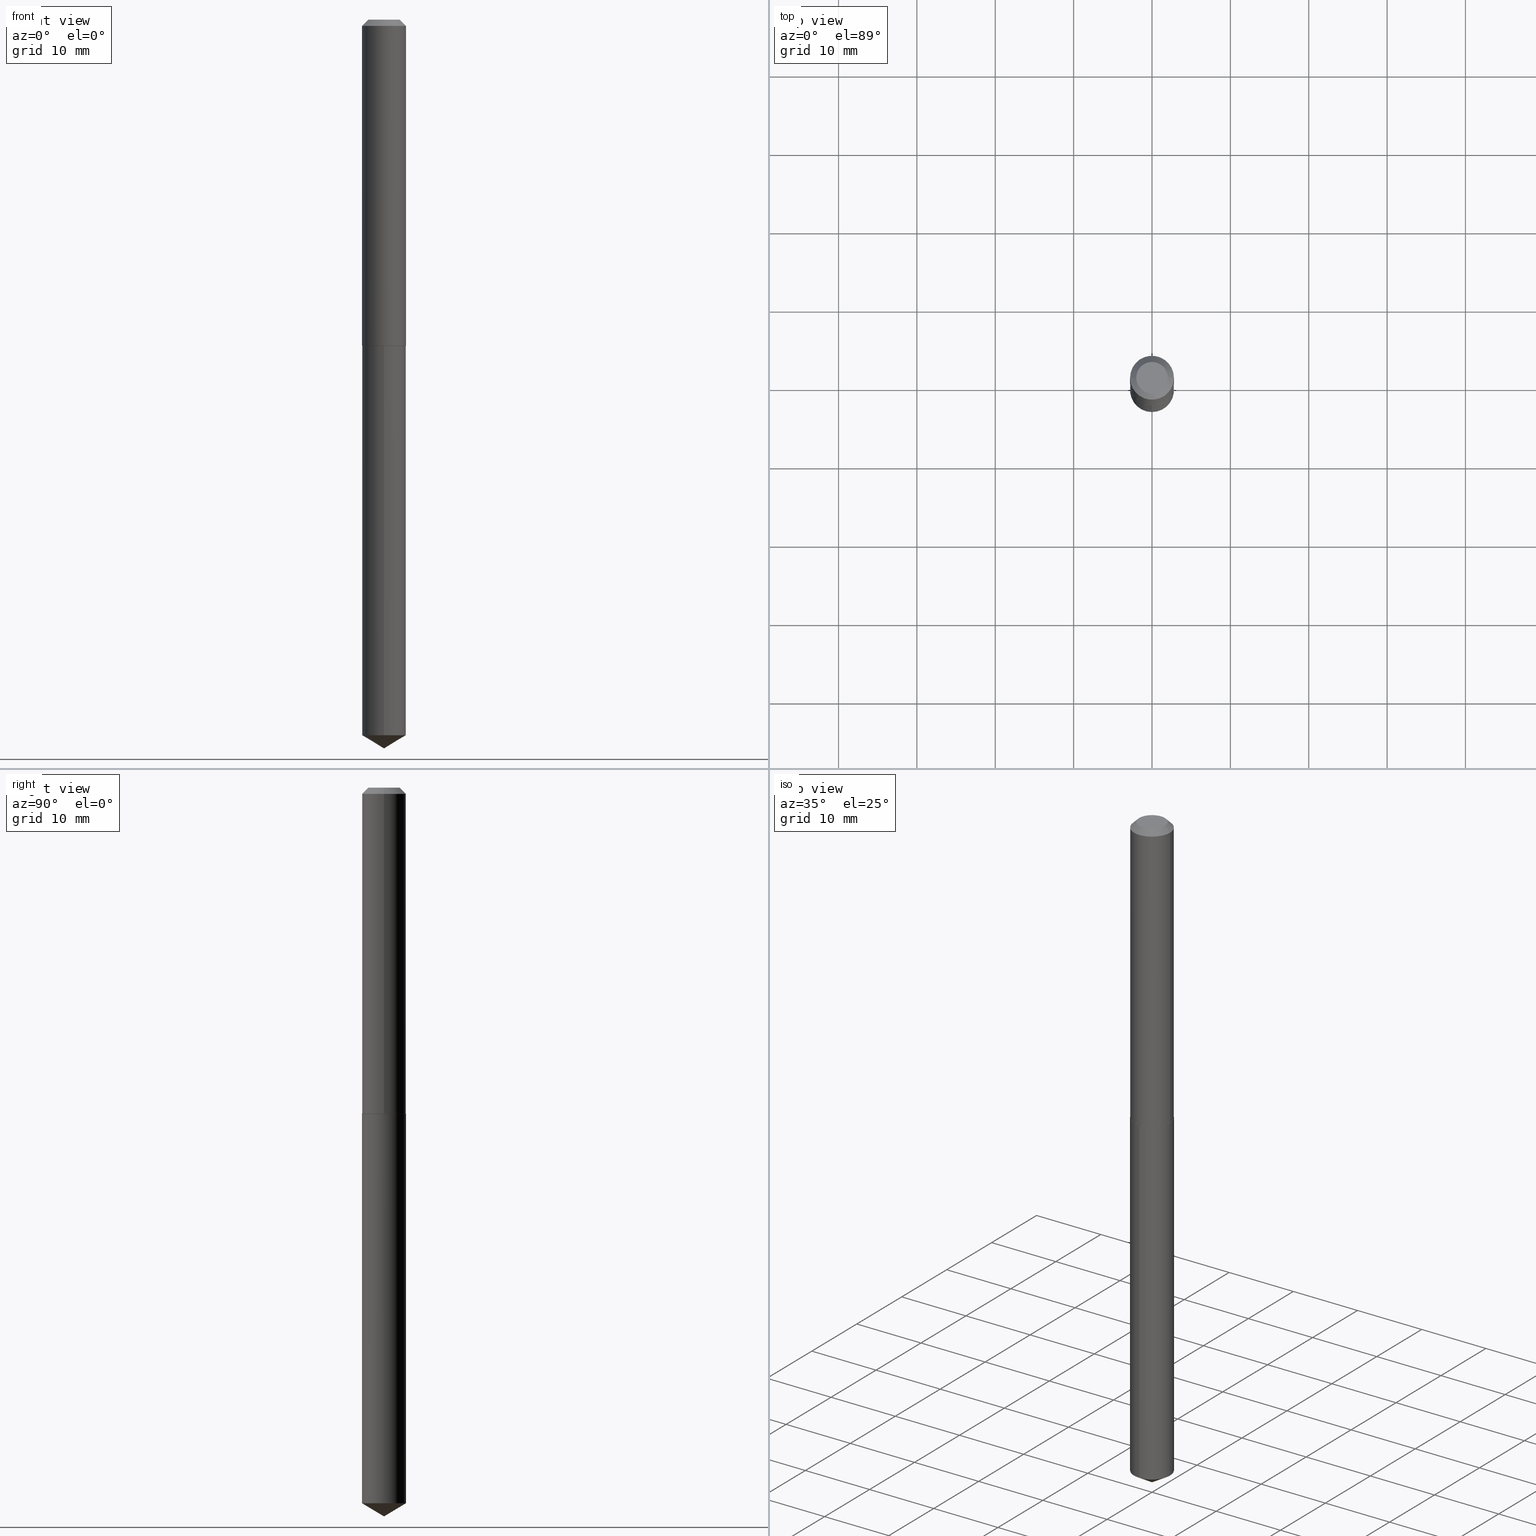
[diagram: canonical four-view strip — front | top / right | iso, engineering-drawing reading convention]
A machine part, canonical four-view strip (front | top / right | iso — engineering-drawing reading convention). The complete STEP part file that produces these views, byte-faithful:
ISO-10303-21;
HEADER;
FILE_DESCRIPTION (( 'STEP AP203' ),
    '1' );
FILE_NAME ('61088.STEP',
    '2024-04-23T03:36:24',
    ( '' ),
    ( '' ),
    'SwSTEP 2.0',
    'SolidWorks 2023',
    '' );
FILE_SCHEMA (( 'CONFIG_CONTROL_DESIGN' ));
ENDSEC;

DATA;
#1 = PLANE ( 'NONE',  #146 ) ;
#2 = VERTEX_POINT ( 'NONE', #211 ) ;
#3 = AXIS2_PLACEMENT_3D ( 'NONE', #194, #163, #35 ) ;
#4 = CARTESIAN_POINT ( 'NONE',  ( -0.1102500000000000008, -2.129482227787853014E-15, -0.03125000000000021511 ) ) ;
#5 = DIRECTION ( 'NONE',  ( 1.000000000000000000, -6.982962677686266711E-15, 0.000000000000000000 ) ) ;
#6 = PERSON_AND_ORGANIZATION_ROLE ( 'creator' ) ;
#7 = CARTESIAN_POINT ( 'NONE',  ( 4.003966076366924393E-29, -5.716602396087881989E-15, -1.637299999999999978 ) ) ;
#8 = PERSON_AND_ORGANIZATION ( #116, #334 ) ;
#9 = ORIENTED_EDGE ( 'NONE', *, *, #315, .F. ) ;
#10 = DIMENSIONAL_EXPONENTS ( 1.000000000000000000, 0.000000000000000000, 0.000000000000000000, 0.000000000000000000, 0.000000000000000000, 0.000000000000000000, 0.000000000000000000 ) ;
#11 = AXIS2_PLACEMENT_3D ( 'NONE', #174, #295, #140 ) ;
#12 = DIRECTION ( 'NONE',  ( -2.445447831690350451E-29, 3.491511375513473467E-15, 1.000000000000000000 ) ) ;
#13 = VERTEX_POINT ( 'NONE', #370 ) ;
#14 = DIRECTION ( 'NONE',  ( -1.000000000000000000, 6.982962677686266711E-15, 0.000000000000000000 ) ) ;
#15 = COORDINATED_UNIVERSAL_TIME_OFFSET ( 5, 0, .BEHIND. ) ;
#16 = CC_DESIGN_DATE_AND_TIME_ASSIGNMENT ( #157, #190, ( #18 ) ) ;
#17 = EDGE_CURVE ( 'NONE', #2, #69, #264, .T. ) ;
#18 = SECURITY_CLASSIFICATION ( '', '', #360 ) ;
#19 = EDGE_CURVE ( 'NONE', #69, #278, #375, .T. ) ;
#20 = AXIS2_PLACEMENT_3D ( 'NONE', #260, #166, #64 ) ;
#21 = APPROVAL_DATE_TIME ( #336, #25 ) ;
#22 = LINE ( 'NONE', #189, #73 ) ;
#23 = ORIENTED_EDGE ( 'NONE', *, *, #219, .T. ) ;
#24 = DIRECTION ( 'NONE',  ( -2.445468806185136597E-29, 3.491481338843145583E-15, 1.000000000000000000 ) ) ;
#25 = APPROVAL ( #296, 'UNSPECIFIED' ) ;
#26 = EDGE_CURVE ( 'NONE', #13, #309, #104, .T. ) ;
#27 = DIRECTION ( 'NONE',  ( -2.445468806185136597E-29, 3.491481338843145583E-15, 1.000000000000000000 ) ) ;
#28 = COORDINATED_UNIVERSAL_TIME_OFFSET ( 5, 0, .BEHIND. ) ;
#29 = FACE_OUTER_BOUND ( 'NONE', #257, .T. ) ;
#30 = ORIENTED_EDGE ( 'NONE', *, *, #19, .T. ) ;
#31 = PLANE ( 'NONE',  #267 ) ;
#32 = AXIS2_PLACEMENT_3D ( 'NONE', #105, #193, #273 ) ;
#33 = CIRCLE ( 'NONE', #11, 0.07900000000000000078 ) ;
#34 = ADVANCED_FACE ( 'NONE', ( #135 ), #237, .T. ) ;
#35 = DIRECTION ( 'NONE',  ( 1.000000000000000000, -6.982962677686265133E-15, 0.000000000000000000 ) ) ;
#36 = PERSON_AND_ORGANIZATION_ROLE ( 'design_owner' ) ;
#37 = EDGE_LOOP ( 'NONE', ( #266, #226, #320, #390 ) ) ;
#38 = DIRECTION ( 'NONE',  ( -6.982962677686266711E-15, -1.000000000000000000, 3.468864327941606836E-15 ) ) ;
#39 = EDGE_CURVE ( 'NONE', #278, #58, #106, .T. ) ;
#40 = ORIENTED_EDGE ( 'NONE', *, *, #270, .T. ) ;
#41 = DIRECTION ( 'NONE',  ( 1.000000000000000000, -6.982962677686266711E-15, 0.000000000000000000 ) ) ;
#42 = ADVANCED_BREP_SHAPE_REPRESENTATION ( '61088', ( #122, #385, #363 ), #111 ) ;
#43 = DIRECTION ( 'NONE',  ( 1.000000000000000000, -6.982962677686265133E-15, 0.000000000000000000 ) ) ;
#44 = DATE_AND_TIME ( #130, #141 ) ;
#45 = ORIENTED_EDGE ( 'NONE', *, *, #234, .T. ) ;
#46 = AXIS2_PLACEMENT_3D ( 'NONE', #279, #364, #180 ) ;
#47 = PERSON_AND_ORGANIZATION ( #116, #334 ) ;
#48 = CLOSED_SHELL ( 'NONE', ( #301, #144, #131, #249, #241, #173, #125, #327 ) ) ;
#49 = CONICAL_SURFACE ( 'NONE', #210, 0.1102500000000002089, 0.7853981633972434429 ) ;
#50 = VECTOR ( 'NONE', #252, 39.37007874015748143 ) ;
#51 = EDGE_LOOP ( 'NONE', ( #40, #158, #86, #239 ) ) ;
#52 = CARTESIAN_POINT ( 'NONE',  ( 4.005188810770016634E-29, -5.718348136757303493E-15, -1.637799999999999923 ) ) ;
#53 = ORIENTED_EDGE ( 'NONE', *, *, #317, .F. ) ;
#54 = FACE_OUTER_BOUND ( 'NONE', #37, .T. ) ;
#55 = DIRECTION ( 'NONE',  ( -0.7071067811864026886, 7.493145998869830357E-15, 0.7071067811866923458 ) ) ;
#56 = ORIENTED_EDGE ( 'NONE', *, *, #89, .T. ) ;
#57 = LOCAL_TIME ( 23, 36, 24.00000000000000000, #307 ) ;
#58 = VERTEX_POINT ( 'NONE', #4 ) ;
#59 = COORDINATED_UNIVERSAL_TIME_OFFSET ( 5, 0, .BEHIND. ) ;
#60 = CYLINDRICAL_SURFACE ( 'NONE', #195, 0.1102500000000001118 ) ;
#61 = CARTESIAN_POINT ( 'NONE',  ( 7.833733661755984184E-16, 0.1102499999999942693, -1.637800000000000145 ) ) ;
#62 = EDGE_CURVE ( 'NONE', #58, #278, #333, .T. ) ;
#63 = CARTESIAN_POINT ( 'NONE',  ( 7.833733661755981226E-16, 0.1102499999999874275, -3.595155116752211555 ) ) ;
#64 = DIRECTION ( 'NONE',  ( -6.982962677686266711E-15, -1.000000000000000000, 3.468864327941606836E-15 ) ) ;
#65 = CIRCLE ( 'NONE', #94, 0.1102500000000000008 ) ;
#66 = CC_DESIGN_SECURITY_CLASSIFICATION ( #18, ( #254 ) ) ;
#67 = DATE_AND_TIME ( #138, #350 ) ;
#68 = CARTESIAN_POINT ( 'NONE',  ( -0.1097500000000002363, -4.935878257086481448E-15, -1.637800000000000145 ) ) ;
#69 = VERTEX_POINT ( 'NONE', #371 ) ;
#70 = DIRECTION ( 'NONE',  ( 0.000000000000000000, 0.000000000000000000, 1.000000000000000000 ) ) ;
#71 = ORIENTED_EDGE ( 'NONE', *, *, #159, .T. ) ;
#72 = ADVANCED_FACE ( 'NONE', ( #343 ), #298, .T. ) ;
#73 = VECTOR ( 'NONE', #55, 39.37007874015748143 ) ;
#74 = CARTESIAN_POINT ( 'NONE',  ( 7.642090019328604414E-31, -1.091087918388490513E-16, -0.03125000000000021511 ) ) ;
#75 = CONICAL_SURFACE ( 'NONE', #20, 65.52281426576819001, 1.029744258676652979 ) ;
#76 = DIRECTION ( 'NONE',  ( -2.445447831690350451E-29, 3.491511375513473467E-15, 1.000000000000000000 ) ) ;
#77 = DIRECTION ( 'NONE',  ( -6.982962677686266711E-15, -1.000000000000000000, 4.955733321839933614E-15 ) ) ;
#78 = APPROVAL_DATE_TIME ( #121, #383 ) ;
#79 = CC_DESIGN_PERSON_AND_ORGANIZATION_ASSIGNMENT ( #319, #36, ( #302 ) ) ;
#80 = ADVANCED_FACE ( 'NONE', ( #139 ), #75, .T. ) ;
#81 = PERSON_AND_ORGANIZATION_ROLE ( 'creator' ) ;
#82 = EDGE_LOOP ( 'NONE', ( #53, #123, #348, #142 ) ) ;
#83 = CARTESIAN_POINT ( 'NONE',  ( 0.000000000000000000, 0.000000000000000000, 0.000000000000000000 ) ) ;
#84 = EDGE_LOOP ( 'NONE', ( #357, #99, #304 ) ) ;
#85 = CARTESIAN_POINT ( 'NONE',  ( 0.000000000000000000, 0.000000000000000000, 0.000000000000000000 ) ) ;
#86 = ORIENTED_EDGE ( 'NONE', *, *, #192, .F. ) ;
#87 = AXIS2_PLACEMENT_3D ( 'NONE', #314, #291, #136 ) ;
#88 = DIRECTION ( 'NONE',  ( 2.445447831690350451E-29, -3.491511375513473073E-15, -1.000000000000000000 ) ) ;
#89 = EDGE_CURVE ( 'NONE', #316, #278, #171, .T. ) ;
#90 = ORIENTED_EDGE ( 'NONE', *, *, #228, .T. ) ;
#91 = DIRECTION ( 'NONE',  ( -2.445447831690350451E-29, 3.491511375513473073E-15, 1.000000000000000000 ) ) ;
#92 = DIRECTION ( 'NONE',  ( -2.445468806185136597E-29, 3.491481338843145583E-15, 1.000000000000000000 ) ) ;
#93 = PRODUCT_DEFINITION_SHAPE ( 'NONE', 'NONE',  #176 ) ;
#94 = AXIS2_PLACEMENT_3D ( 'NONE', #388, #285, #250 ) ;
#95 =( CONVERSION_BASED_UNIT ( 'INCH', #294 ) LENGTH_UNIT ( ) NAMED_UNIT ( #10 ) );
#96 = CC_DESIGN_PERSON_AND_ORGANIZATION_ASSIGNMENT ( #8, #6, ( #176 ) ) ;
#97 = DIRECTION ( 'NONE',  ( -6.982962677686266711E-15, -1.000000000000000000, 4.955733321839933614E-15 ) ) ;
#98 = CC_DESIGN_PERSON_AND_ORGANIZATION_ASSIGNMENT ( #244, #362, ( #18 ) ) ;
#99 = ORIENTED_EDGE ( 'NONE', *, *, #255, .T. ) ;
#100 = CARTESIAN_POINT ( 'NONE',  ( 0.1102500000000000008, -8.654786960931604025E-16, -0.03125000000000021511 ) ) ;
#101 = APPLICATION_CONTEXT ( 'configuration controlled 3d designs of mechanical parts and assemblies' ) ;
#102 = LINE ( 'NONE', #376, #289 ) ;
#103 = CARTESIAN_POINT ( 'NONE',  ( 4.005188810770016634E-29, -5.718348136757303493E-15, -1.637799999999999923 ) ) ;
#104 = LINE ( 'NONE', #268, #221 ) ;
#105 = CARTESIAN_POINT ( 'NONE',  ( 4.003966076366924393E-29, -5.716602396087881989E-15, -1.637299999999999978 ) ) ;
#106 = CIRCLE ( 'NONE', #299, 0.1102500000000000008 ) ;
#107 = CARTESIAN_POINT ( 'NONE',  ( 4.005188810770016634E-29, -5.718348136757303493E-15, -1.637799999999999923 ) ) ;
#108 = VECTOR ( 'NONE', #361, 39.37007874015748143 ) ;
#109 = FACE_OUTER_BOUND ( 'NONE', #213, .T. ) ;
#110 = EDGE_LOOP ( 'NONE', ( #292, #248 ) ) ;
#111 =( GEOMETRIC_REPRESENTATION_CONTEXT ( 3 ) GLOBAL_UNCERTAINTY_ASSIGNED_CONTEXT ( ( #275 ) ) GLOBAL_UNIT_ASSIGNED_CONTEXT ( ( #95, #137, #225 ) ) REPRESENTATION_CONTEXT ( 'NONE', 'WORKASPACE' ) );
#112 = PERSON_AND_ORGANIZATION ( #116, #334 ) ;
#113 = DIRECTION ( 'NONE',  ( -2.445468806185136597E-29, 3.491481338843145583E-15, 1.000000000000000000 ) ) ;
#114 = AXIS2_PLACEMENT_3D ( 'NONE', #368, #284, #5 ) ;
#115 = PRODUCT_RELATED_PRODUCT_CATEGORY ( 'detail', '', ( #302 ) ) ;
#116 = PERSON ( 'UNSPECIFIED', 'UNSPECIFIED', 'UNSPECIFIED', ('UNSPECIFIED'), ('UNSPECIFIED'), ('UNSPECIFIED') ) ;
#117 = CARTESIAN_POINT ( 'NONE',  ( 0.07900000000000000078, -7.037290189585556716E-16, 4.837354856675944889E-19 ) ) ;
#118 = VERTEX_POINT ( 'NONE', #134 ) ;
#119 = ORIENTED_EDGE ( 'NONE', *, *, #352, .F. ) ;
#120 = CALENDAR_DATE ( 2024, 22, 4 ) ;
#121 = DATE_AND_TIME ( #245, #57 ) ;
#122 = MANIFOLD_SOLID_BREP ( 'Body-Move/Copy2[1]', #328 ) ;
#123 = ORIENTED_EDGE ( 'NONE', *, *, #242, .T. ) ;
#124 = CIRCLE ( 'NONE', #114, 0.1097500000000002363 ) ;
#125 = ADVANCED_FACE ( 'NONE', ( #283 ), #321, .T. ) ;
#126 = CARTESIAN_POINT ( 'NONE',  ( 7.642090019328604414E-31, -1.091087918388490513E-16, -0.03125000000000021511 ) ) ;
#127 = PERSON_AND_ORGANIZATION ( #116, #334 ) ;
#128 = DIRECTION ( 'NONE',  ( 2.445468806185136597E-29, -3.491481338843145583E-15, -1.000000000000000000 ) ) ;
#129 = LINE ( 'NONE', #202, #50 ) ;
#130 = CALENDAR_DATE ( 2024, 22, 4 ) ;
#131 = ADVANCED_FACE ( 'NONE', ( #293 ), #145, .T. ) ;
#132 = VECTOR ( 'NONE', #259, 39.37007874015748143 ) ;
#133 = ORIENTED_EDGE ( 'NONE', *, *, #26, .T. ) ;
#134 = CARTESIAN_POINT ( 'NONE',  ( 8.953762690951048429E-29, -1.278381975030503079E-14, -3.661399999999999988 ) ) ;
#135 = FACE_OUTER_BOUND ( 'NONE', #365, .T. ) ;
#136 = DIRECTION ( 'NONE',  ( 1.000000000000000000, -6.982962677686265922E-15, 4.876176775795935793E-29 ) ) ;
#137 =( NAMED_UNIT ( * ) PLANE_ANGLE_UNIT ( ) SI_UNIT ( $, .RADIAN. ) );
#138 = CALENDAR_DATE ( 2024, 22, 4 ) ;
#139 = FACE_OUTER_BOUND ( 'NONE', #200, .T. ) ;
#140 = DIRECTION ( 'NONE',  ( 1.000000000000000000, -6.982962677686266711E-15, 4.876146932060044341E-29 ) ) ;
#141 = LOCAL_TIME ( 23, 36, 24.00000000000000000, #373 ) ;
#142 = ORIENTED_EDGE ( 'NONE', *, *, #219, .F. ) ;
#143 = APPROVAL ( #286, 'UNSPECIFIED' ) ;
#144 = ADVANCED_FACE ( 'NONE', ( #54 ), #60, .T. ) ;
#145 = CONICAL_SURFACE ( 'NONE', #32, 0.1102500000000002089, 0.7853981633972434429 ) ;
#146 = AXIS2_PLACEMENT_3D ( 'NONE', #389, #217, #218 ) ;
#147 = CC_DESIGN_PERSON_AND_ORGANIZATION_ASSIGNMENT ( #271, #81, ( #254 ) ) ;
#148 = ADVANCED_FACE ( 'NONE', ( #29 ), #31, .F. ) ;
#149 = DIRECTION ( 'NONE',  ( 1.000000000000000000, -6.982962677686266711E-15, 0.000000000000000000 ) ) ;
#150 = APPROVAL_STATUS ( 'not_yet_approved' ) ;
#151 = AXIS2_PLACEMENT_3D ( 'NONE', #83, #24, #154 ) ;
#152 = CC_DESIGN_APPROVAL ( #143, ( #176 ) ) ;
#153 = ORIENTED_EDGE ( 'NONE', *, *, #317, .T. ) ;
#154 = DIRECTION ( 'NONE',  ( 1.000000000000000000, -6.982962677686266711E-15, 4.876176775795935793E-29 ) ) ;
#155 = FACE_OUTER_BOUND ( 'NONE', #236, .T. ) ;
#156 = ORIENTED_EDGE ( 'NONE', *, *, #379, .F. ) ;
#157 = DATE_AND_TIME ( #366, #207 ) ;
#158 = ORIENTED_EDGE ( 'NONE', *, *, #197, .T. ) ;
#159 = EDGE_CURVE ( 'NONE', #191, #316, #246, .T. ) ;
#160 = DIRECTION ( 'NONE',  ( -2.445468806185136597E-29, 3.491481338843145583E-15, 1.000000000000000000 ) ) ;
#161 = VECTOR ( 'NONE', #172, 39.37007874015748854 ) ;
#162 = DIRECTION ( 'NONE',  ( -2.445447831690350451E-29, 3.491511375513473467E-15, 1.000000000000000000 ) ) ;
#163 = DIRECTION ( 'NONE',  ( -2.445468806185136597E-29, 3.491481338843145583E-15, 1.000000000000000000 ) ) ;
#164 = APPLICATION_PROTOCOL_DEFINITION ( 'international standard', 'config_control_design', 1994, #222 ) ;
#165 = EDGE_LOOP ( 'NONE', ( #287, #170, #45, #243 ) ) ;
#166 = DIRECTION ( 'NONE',  ( -2.445447831690350451E-29, 3.491511375513473467E-15, 1.000000000000000000 ) ) ;
#167 = APPROVAL_PERSON_ORGANIZATION ( #127, #143, #256 ) ;
#168 = DIRECTION ( 'NONE',  ( 1.000000000000000000, -6.982962677686266711E-15, 0.000000000000000000 ) ) ;
#169 = CYLINDRICAL_SURFACE ( 'NONE', #342, 0.1102500000000000008 ) ;
#170 = ORIENTED_EDGE ( 'NONE', *, *, #159, .F. ) ;
#171 = LINE ( 'NONE', #100, #132 ) ;
#172 = DIRECTION ( 'NONE',  ( -5.985567269335936546E-15, -0.8571673007021096691, 0.5150380749100583744 ) ) ;
#173 = ADVANCED_FACE ( 'NONE', ( #182 ), #358, .T. ) ;
#174 = CARTESIAN_POINT ( 'NONE',  ( -1.182960040634186398E-47, 1.688953421129307900E-33, 4.837354856632054872E-19 ) ) ;
#175 = DATE_TIME_ROLE ( 'creation_date' ) ;
#176 = PRODUCT_DEFINITION ( 'UNKNOWN', '', #254, #184 ) ;
#177 = CC_DESIGN_APPROVAL ( #25, ( #254 ) ) ;
#178 = CARTESIAN_POINT ( 'NONE',  ( -0.1102500000000002089, -4.933229029912370247E-15, -1.637299999999999978 ) ) ;
#179 = DIRECTION ( 'NONE',  ( -2.445468806185136877E-29, 3.491481338843145188E-15, 1.000000000000000000 ) ) ;
#180 = DIRECTION ( 'NONE',  ( -6.982962677686266711E-15, -1.000000000000000000, 2.477866660919966807E-15 ) ) ;
#181 = EDGE_LOOP ( 'NONE', ( #90, #153, #382, #274 ) ) ;
#182 = FACE_OUTER_BOUND ( 'NONE', #308, .T. ) ;
#183 = ORIENTED_EDGE ( 'NONE', *, *, #297, .T. ) ;
#184 = DESIGN_CONTEXT ( 'detailed design', #222, 'design' ) ;
#185 = APPROVAL_ROLE ( '' ) ;
#186 = CIRCLE ( 'NONE', #230, 0.1102500000000000008 ) ;
#187 = ORIENTED_EDGE ( 'NONE', *, *, #192, .T. ) ;
#188 = DIRECTION ( 'NONE',  ( -2.445468806185136597E-29, 3.491481338843145583E-15, 1.000000000000000000 ) ) ;
#189 = CARTESIAN_POINT ( 'NONE',  ( -0.1102500000000002089, -4.933229029912370247E-15, -1.637299999999999978 ) ) ;
#190 = DATE_TIME_ROLE ( 'classification_date' ) ;
#191 = VERTEX_POINT ( 'NONE', #276 ) ;
#192 = EDGE_CURVE ( 'NONE', #309, #330, #65, .T. ) ;
#193 = DIRECTION ( 'NONE',  ( -2.445468806185136597E-29, 3.491481338843145583E-15, 1.000000000000000000 ) ) ;
#194 = CARTESIAN_POINT ( 'NONE',  ( 4.003966076366924393E-29, -5.716602396087881989E-15, -1.637299999999999978 ) ) ;
#195 = AXIS2_PLACEMENT_3D ( 'NONE', #85, #188, #310 ) ;
#196 = AXIS2_PLACEMENT_3D ( 'NONE', #340, #224, #168 ) ;
#197 = EDGE_CURVE ( 'NONE', #204, #330, #258, .T. ) ;
#198 = FACE_OUTER_BOUND ( 'NONE', #51, .T. ) ;
#199 = PLANE ( 'NONE',  #87 ) ;
#200 = EDGE_LOOP ( 'NONE', ( #337, #183, #119 ) ) ;
#201 = CARTESIAN_POINT ( 'NONE',  ( -8.732367664561787781E-28, 1.246773072198746349E-13, 35.70867874015748100 ) ) ;
#202 = CARTESIAN_POINT ( 'NONE',  ( -0.1102500000000000008, 6.607628433760618791E-16, -0.03125000000000021511 ) ) ;
#203 = MECHANICAL_CONTEXT ( 'NONE', #101, 'mechanical' ) ;
#204 = VERTEX_POINT ( 'NONE', #63 ) ;
#205 = AXIS2_PLACEMENT_3D ( 'NONE', #126, #367, #41 ) ;
#206 = DIRECTION ( 'NONE',  ( 0.7071067811864026886, -2.468850131080739687E-15, 0.7071067811866923458 ) ) ;
#207 = LOCAL_TIME ( 23, 36, 24.00000000000000000, #59 ) ;
#208 = SHAPE_DEFINITION_REPRESENTATION ( #93, #42 ) ;
#209 = CARTESIAN_POINT ( 'NONE',  ( 0.1102500000000000008, -8.789804270537599818E-16, -0.03125000000000021511 ) ) ;
#210 = AXIS2_PLACEMENT_3D ( 'NONE', #7, #92, #220 ) ;
#211 = CARTESIAN_POINT ( 'NONE',  ( 0.1097500000000002363, -6.484728290633373536E-15, -1.637800000000000145 ) ) ;
#212 = ORIENTED_EDGE ( 'NONE', *, *, #197, .F. ) ;
#213 = EDGE_LOOP ( 'NONE', ( #280, #56, #345, #335 ) ) ;
#214 = CARTESIAN_POINT ( 'NONE',  ( 0.1102500000000002089, -6.486474031302794251E-15, -1.637299999999999978 ) ) ;
#215 = CC_DESIGN_APPROVAL ( #383, ( #18 ) ) ;
#216 = ORIENTED_EDGE ( 'NONE', *, *, #62, .F. ) ;
#217 = DIRECTION ( 'NONE',  ( 2.438088387897960049E-29, -3.491481338843145188E-15, -1.000000000000000000 ) ) ;
#218 = DIRECTION ( 'NONE',  ( -1.000000000000000000, 6.982962677686265922E-15, -4.876176775795935793E-29 ) ) ;
#219 = EDGE_CURVE ( 'NONE', #331, #69, #223, .T. ) ;
#220 = DIRECTION ( 'NONE',  ( 1.000000000000000000, -6.982962677686265133E-15, 0.000000000000000000 ) ) ;
#221 = VECTOR ( 'NONE', #91, 39.37007874015748143 ) ;
#222 = APPLICATION_CONTEXT ( 'configuration controlled 3d designs of mechanical parts and assemblies' ) ;
#223 = CIRCLE ( 'NONE', #3, 0.1102500000000002089 ) ;
#224 = DIRECTION ( 'NONE',  ( -2.445468806185136597E-29, 3.491481338843145583E-15, 1.000000000000000000 ) ) ;
#225 =( NAMED_UNIT ( * ) SI_UNIT ( $, .STERADIAN. ) SOLID_ANGLE_UNIT ( ) );
#226 = ORIENTED_EDGE ( 'NONE', *, *, #315, .T. ) ;
#227 =( LENGTH_UNIT ( ) NAMED_UNIT ( * ) SI_UNIT ( $, .METRE. ) );
#228 = EDGE_CURVE ( 'NONE', #2, #387, #124, .T. ) ;
#229 = CARTESIAN_POINT ( 'NONE',  ( -7.698716352148708465E-16, -0.1102500000000057184, -1.637799999999999701 ) ) ;
#230 = AXIS2_PLACEMENT_3D ( 'NONE', #349, #76, #77 ) ;
#231 = CIRCLE ( 'NONE', #196, 0.1097500000000002363 ) ;
#232 = CARTESIAN_POINT ( 'NONE',  ( 0.1102500000000001118, -7.698716352149116700E-16, 5.375984895315024509E-30 ) ) ;
#233 = DIRECTION ( 'NONE',  ( 2.445468806185136597E-29, -3.491481338843145583E-15, -1.000000000000000000 ) ) ;
#234 = EDGE_CURVE ( 'NONE', #191, #58, #129, .T. ) ;
#235 = APPROVAL_PERSON_ORGANIZATION ( #303, #383, #185 ) ;
#236 = EDGE_LOOP ( 'NONE', ( #71, #332 ) ) ;
#237 = CYLINDRICAL_SURFACE ( 'NONE', #46, 0.1102500000000000008 ) ;
#238 = DIRECTION ( 'NONE',  ( 1.000000000000000000, -6.982962677686266711E-15, 4.876146932060044341E-29 ) ) ;
#239 = ORIENTED_EDGE ( 'NONE', *, *, #26, .F. ) ;
#240 = APPROVAL_ROLE ( '' ) ;
#241 = ADVANCED_FACE ( 'NONE', ( #372 ), #49, .T. ) ;
#242 = EDGE_CURVE ( 'NONE', #387, #2, #231, .T. ) ;
#243 = ORIENTED_EDGE ( 'NONE', *, *, #62, .T. ) ;
#244 = PERSON_AND_ORGANIZATION ( #116, #334 ) ;
#245 = CALENDAR_DATE ( 2024, 22, 4 ) ;
#246 = CIRCLE ( 'NONE', #272, 0.07900000000000000078 ) ;
#247 = CIRCLE ( 'NONE', #347, 0.1102500000000000008 ) ;
#248 = ORIENTED_EDGE ( 'NONE', *, *, #242, .F. ) ;
#249 = ADVANCED_FACE ( 'NONE', ( #318 ), #199, .F. ) ;
#250 = DIRECTION ( 'NONE',  ( -6.982962677686266711E-15, -1.000000000000000000, 2.477866660919966807E-15 ) ) ;
#251 = DIRECTION ( 'NONE',  ( -1.000000000000000000, 6.982962677686266711E-15, 0.000000000000000000 ) ) ;
#252 = DIRECTION ( 'NONE',  ( -0.7071067811865451302, 2.468850131082231817E-15, -0.7071067811865499042 ) ) ;
#253 = DIRECTION ( 'NONE',  ( -2.445447831690350451E-29, 3.491511375513473467E-15, 1.000000000000000000 ) ) ;
#254 = PRODUCT_DEFINITION_FORMATION_WITH_SPECIFIED_SOURCE ( 'ANY', '', #302, .NOT_KNOWN. ) ;
#255 = EDGE_CURVE ( 'NONE', #118, #204, #102, .T. ) ;
#256 = APPROVAL_ROLE ( '' ) ;
#257 = EDGE_LOOP ( 'NONE', ( #187, #374 ) ) ;
#258 = LINE ( 'NONE', #369, #300 ) ;
#259 = DIRECTION ( 'NONE',  ( 0.7071067811865451302, -7.319954787623248157E-15, -0.7071067811865499042 ) ) ;
#260 = CARTESIAN_POINT ( 'NONE',  ( -8.732367664561787781E-28, 1.246773072198746349E-13, 35.70867874015748100 ) ) ;
#261 = AXIS2_PLACEMENT_3D ( 'NONE', #344, #162, #97 ) ;
#262 = CARTESIAN_POINT ( 'NONE',  ( 4.003966076366924393E-29, -5.716602396087881989E-15, -1.637299999999999978 ) ) ;
#263 = CC_DESIGN_PERSON_AND_ORGANIZATION_ASSIGNMENT ( #112, #386, ( #254 ) ) ;
#264 = LINE ( 'NONE', #214, #281 ) ;
#265 = LINE ( 'NONE', #381, #161 ) ;
#266 = ORIENTED_EDGE ( 'NONE', *, *, #290, .T. ) ;
#267 = AXIS2_PLACEMENT_3D ( 'NONE', #52, #88, #269 ) ;
#268 = CARTESIAN_POINT ( 'NONE',  ( -7.698716352148708465E-16, -0.1102500000000057184, -1.637799999999999701 ) ) ;
#269 = DIRECTION ( 'NONE',  ( 6.982962677686265922E-15, 1.000000000000000000, -3.491511375513473073E-15 ) ) ;
#270 = EDGE_CURVE ( 'NONE', #13, #204, #186, .T. ) ;
#271 = PERSON_AND_ORGANIZATION ( #116, #334 ) ;
#272 = AXIS2_PLACEMENT_3D ( 'NONE', #353, #113, #238 ) ;
#273 = DIRECTION ( 'NONE',  ( 1.000000000000000000, -6.982962677686265133E-15, 0.000000000000000000 ) ) ;
#274 = ORIENTED_EDGE ( 'NONE', *, *, #17, .F. ) ;
#275 = UNCERTAINTY_MEASURE_WITH_UNIT (LENGTH_MEASURE( 1.000000000000000082E-05 ), #95, 'distance_accuracy_value', 'NONE');
#276 = CARTESIAN_POINT ( 'NONE',  ( -0.07900000000000000078, 6.062084474566384135E-16, 4.837354856591569899E-19 ) ) ;
#277 = CARTESIAN_POINT ( 'NONE',  ( 7.642090019328604414E-31, -1.091087918388490513E-16, -0.03125000000000021511 ) ) ;
#278 = VERTEX_POINT ( 'NONE', #209 ) ;
#279 = CARTESIAN_POINT ( 'NONE',  ( 4.005188810770016634E-29, -5.718348136757303493E-15, -1.637799999999999923 ) ) ;
#280 = ORIENTED_EDGE ( 'NONE', *, *, #288, .F. ) ;
#281 = VECTOR ( 'NONE', #206, 39.37007874015748143 ) ;
#282 = AXIS2_PLACEMENT_3D ( 'NONE', #74, #233, #14 ) ;
#283 = FACE_OUTER_BOUND ( 'NONE', #165, .T. ) ;
#284 = DIRECTION ( 'NONE',  ( -2.445468806185136597E-29, 3.491481338843145583E-15, 1.000000000000000000 ) ) ;
#285 = DIRECTION ( 'NONE',  ( -2.445447831690350451E-29, 3.491511375513473467E-15, 1.000000000000000000 ) ) ;
#286 = APPROVAL_STATUS ( 'not_yet_approved' ) ;
#287 = ORIENTED_EDGE ( 'NONE', *, *, #89, .F. ) ;
#288 = EDGE_CURVE ( 'NONE', #316, #191, #33, .T. ) ;
#289 = VECTOR ( 'NONE', #326, 39.37007874015748143 ) ;
#290 = EDGE_CURVE ( 'NONE', #69, #331, #329, .T. ) ;
#291 = DIRECTION ( 'NONE',  ( -2.438088387897960049E-29, 3.491481338843145188E-15, 1.000000000000000000 ) ) ;
#292 = ORIENTED_EDGE ( 'NONE', *, *, #228, .F. ) ;
#293 = FACE_OUTER_BOUND ( 'NONE', #181, .T. ) ;
#294 = LENGTH_MEASURE_WITH_UNIT ( LENGTH_MEASURE( 0.02539999999999999897 ), #227 );
#295 = DIRECTION ( 'NONE',  ( -2.445468806185136597E-29, 3.491481338843145583E-15, 1.000000000000000000 ) ) ;
#296 = APPROVAL_STATUS ( 'not_yet_approved' ) ;
#297 = EDGE_CURVE ( 'NONE', #118, #13, #265, .T. ) ;
#298 = CONICAL_SURFACE ( 'NONE', #325, 65.52281426576819001, 1.029744258676652979 ) ;
#299 = AXIS2_PLACEMENT_3D ( 'NONE', #277, #160, #149 ) ;
#300 = VECTOR ( 'NONE', #338, 39.37007874015748143 ) ;
#301 = ADVANCED_FACE ( 'NONE', ( #109 ), #380, .T. ) ;
#302 = PRODUCT ( '61088', '61088', '', ( #203 ) ) ;
#303 = PERSON_AND_ORGANIZATION ( #116, #334 ) ;
#304 = ORIENTED_EDGE ( 'NONE', *, *, #270, .F. ) ;
#305 = VECTOR ( 'NONE', #179, 39.37007874015748143 ) ;
#306 = AXIS2_PLACEMENT_3D ( 'NONE', #262, #27, #43 ) ;
#307 = COORDINATED_UNIVERSAL_TIME_OFFSET ( 5, 0, .BEHIND. ) ;
#308 = EDGE_LOOP ( 'NONE', ( #9, #23, #30, #216 ) ) ;
#309 = VERTEX_POINT ( 'NONE', #229 ) ;
#310 = DIRECTION ( 'NONE',  ( 1.000000000000000000, -6.982962677686266711E-15, 4.876176775795935793E-29 ) ) ;
#311 = DIRECTION ( 'NONE',  ( -6.982962677686266711E-15, -1.000000000000000000, 2.477866660919966807E-15 ) ) ;
#312 = CARTESIAN_POINT ( 'NONE',  ( 7.642090019328604414E-31, -1.091087918388490513E-16, -0.03125000000000021511 ) ) ;
#313 = APPROVAL_DATE_TIME ( #67, #143 ) ;
#314 = CARTESIAN_POINT ( 'NONE',  ( 1.158417442300927511E-29, -9.795086764568985500E-15, -1.637800000000000145 ) ) ;
#315 = EDGE_CURVE ( 'NONE', #331, #58, #346, .T. ) ;
#316 = VERTEX_POINT ( 'NONE', #117 ) ;
#317 = EDGE_CURVE ( 'NONE', #387, #331, #22, .T. ) ;
#318 = FACE_OUTER_BOUND ( 'NONE', #110, .T. ) ;
#319 = PERSON_AND_ORGANIZATION ( #116, #334 ) ;
#320 = ORIENTED_EDGE ( 'NONE', *, *, #39, .F. ) ;
#321 = CONICAL_SURFACE ( 'NONE', #378, 0.1102500000000000008, 0.7853981633974449483 ) ;
#322 = CIRCLE ( 'NONE', #261, 0.1102500000000000008 ) ;
#323 = CARTESIAN_POINT ( 'NONE',  ( 0.000000000000000000, 0.000000000000000000, 0.000000000000000000 ) ) ;
#324 = DIRECTION ( 'NONE',  ( -2.445447831690350451E-29, 3.491511375513473467E-15, 1.000000000000000000 ) ) ;
#325 = AXIS2_PLACEMENT_3D ( 'NONE', #201, #324, #38 ) ;
#326 = DIRECTION ( 'NONE',  ( 6.090539988449774491E-15, 0.8571673007021132218, 0.5150380749100524902 ) ) ;
#327 = ADVANCED_FACE ( 'NONE', ( #155 ), #1, .F. ) ;
#328 = CLOSED_SHELL ( 'NONE', ( #354, #72, #80, #34, #148 ) ) ;
#329 = CIRCLE ( 'NONE', #306, 0.1102500000000002089 ) ;
#330 = VERTEX_POINT ( 'NONE', #61 ) ;
#331 = VERTEX_POINT ( 'NONE', #178 ) ;
#332 = ORIENTED_EDGE ( 'NONE', *, *, #288, .T. ) ;
#333 = CIRCLE ( 'NONE', #205, 0.1102500000000000008 ) ;
#334 = ORGANIZATION ( 'UNSPECIFIED', 'UNSPECIFIED', '' ) ;
#335 = ORIENTED_EDGE ( 'NONE', *, *, #234, .F. ) ;
#336 = DATE_AND_TIME ( #120, #355 ) ;
#337 = ORIENTED_EDGE ( 'NONE', *, *, #255, .F. ) ;
#338 = DIRECTION ( 'NONE',  ( -2.445447831690350451E-29, 3.491511375513473073E-15, 1.000000000000000000 ) ) ;
#339 = DIRECTION ( 'NONE',  ( -6.982962677686266711E-15, -1.000000000000000000, 2.477866660919966807E-15 ) ) ;
#340 = CARTESIAN_POINT ( 'NONE',  ( 4.005188810770017194E-29, -5.718348136757304282E-15, -1.637800000000000145 ) ) ;
#341 = APPLICATION_PROTOCOL_DEFINITION ( 'international standard', 'config_control_design', 1994, #101 ) ;
#342 = AXIS2_PLACEMENT_3D ( 'NONE', #107, #12, #311 ) ;
#343 = FACE_OUTER_BOUND ( 'NONE', #84, .T. ) ;
#344 = CARTESIAN_POINT ( 'NONE',  ( 8.791798636879723663E-29, -1.255247579281715321E-14, -3.595155116752211111 ) ) ;
#345 = ORIENTED_EDGE ( 'NONE', *, *, #39, .T. ) ;
#346 = LINE ( 'NONE', #356, #108 ) ;
#347 = AXIS2_PLACEMENT_3D ( 'NONE', #103, #253, #339 ) ;
#348 = ORIENTED_EDGE ( 'NONE', *, *, #17, .T. ) ;
#349 = CARTESIAN_POINT ( 'NONE',  ( 8.791798636879723663E-29, -1.255247579281715321E-14, -3.595155116752211111 ) ) ;
#350 = LOCAL_TIME ( 23, 36, 24.00000000000000000, #15 ) ;
#351 = CC_DESIGN_DATE_AND_TIME_ASSIGNMENT ( #44, #175, ( #176 ) ) ;
#352 = EDGE_CURVE ( 'NONE', #204, #13, #322, .T. ) ;
#353 = CARTESIAN_POINT ( 'NONE',  ( -1.182960040634186398E-47, 1.688953421129307900E-33, 4.837354856632054872E-19 ) ) ;
#354 = ADVANCED_FACE ( 'NONE', ( #198 ), #169, .T. ) ;
#355 = LOCAL_TIME ( 23, 36, 24.00000000000000000, #28 ) ;
#356 = CARTESIAN_POINT ( 'NONE',  ( -0.1102500000000001118, 7.833733661755112493E-16, -5.423125937006039074E-30 ) ) ;
#357 = ORIENTED_EDGE ( 'NONE', *, *, #297, .F. ) ;
#358 = CYLINDRICAL_SURFACE ( 'NONE', #151, 0.1102500000000001118 ) ;
#359 = ORIENTED_EDGE ( 'NONE', *, *, #352, .T. ) ;
#360 = SECURITY_CLASSIFICATION_LEVEL ( 'unclassified' ) ;
#361 = DIRECTION ( 'NONE',  ( -2.445468806185136877E-29, 3.491481338843145188E-15, 1.000000000000000000 ) ) ;
#362 = PERSON_AND_ORGANIZATION_ROLE ( 'classification_officer' ) ;
#363 = AXIS2_PLACEMENT_3D ( 'NONE', #323, #70, #377 ) ;
#364 = DIRECTION ( 'NONE',  ( -2.445447831690350451E-29, 3.491511375513473467E-15, 1.000000000000000000 ) ) ;
#365 = EDGE_LOOP ( 'NONE', ( #212, #359, #133, #156 ) ) ;
#366 = CALENDAR_DATE ( 2024, 22, 4 ) ;
#367 = DIRECTION ( 'NONE',  ( -2.445468806185136597E-29, 3.491481338843145583E-15, 1.000000000000000000 ) ) ;
#368 = CARTESIAN_POINT ( 'NONE',  ( 4.005188810770017194E-29, -5.718348136757304282E-15, -1.637800000000000145 ) ) ;
#369 = CARTESIAN_POINT ( 'NONE',  ( 7.833733661755503965E-16, 0.1102499999999942831, -1.637800000000000145 ) ) ;
#370 = CARTESIAN_POINT ( 'NONE',  ( -7.698716352148227260E-16, -0.1102500000000125324, -3.595155116752210667 ) ) ;
#371 = CARTESIAN_POINT ( 'NONE',  ( 0.1102500000000002089, -6.486474031302794251E-15, -1.637299999999999978 ) ) ;
#372 = FACE_OUTER_BOUND ( 'NONE', #82, .T. ) ;
#373 = COORDINATED_UNIVERSAL_TIME_OFFSET ( 5, 0, .BEHIND. ) ;
#374 = ORIENTED_EDGE ( 'NONE', *, *, #379, .T. ) ;
#375 = LINE ( 'NONE', #232, #305 ) ;
#376 = CARTESIAN_POINT ( 'NONE',  ( 8.953831997459635498E-29, -1.278372136218770450E-14, -3.661399999999999988 ) ) ;
#377 = DIRECTION ( 'NONE',  ( 1.000000000000000000, 0.000000000000000000, 0.000000000000000000 ) ) ;
#378 = AXIS2_PLACEMENT_3D ( 'NONE', #312, #128, #251 ) ;
#379 = EDGE_CURVE ( 'NONE', #330, #309, #247, .T. ) ;
#380 = CONICAL_SURFACE ( 'NONE', #282, 0.1102500000000000008, 0.7853981633974449483 ) ;
#381 = CARTESIAN_POINT ( 'NONE',  ( 8.953762690951048429E-29, -1.278381975030503079E-14, -3.661399999999999988 ) ) ;
#382 = ORIENTED_EDGE ( 'NONE', *, *, #290, .F. ) ;
#383 = APPROVAL ( #150, 'UNSPECIFIED' ) ;
#384 = APPROVAL_PERSON_ORGANIZATION ( #47, #25, #240 ) ;
#385 = MANIFOLD_SOLID_BREP ( 'Body-Move/Copy2[2]', #48 ) ;
#386 = PERSON_AND_ORGANIZATION_ROLE ( 'design_supplier' ) ;
#387 = VERTEX_POINT ( 'NONE', #68 ) ;
#388 = CARTESIAN_POINT ( 'NONE',  ( 4.005188810770016634E-29, -5.718348136757303493E-15, -1.637799999999999923 ) ) ;
#389 = CARTESIAN_POINT ( 'NONE',  ( -5.914800203170931988E-48, 8.444767105646539499E-34, 2.418677428316027436E-19 ) ) ;
#390 = ORIENTED_EDGE ( 'NONE', *, *, #19, .F. ) ;
ENDSEC;
END-ISO-10303-21;
